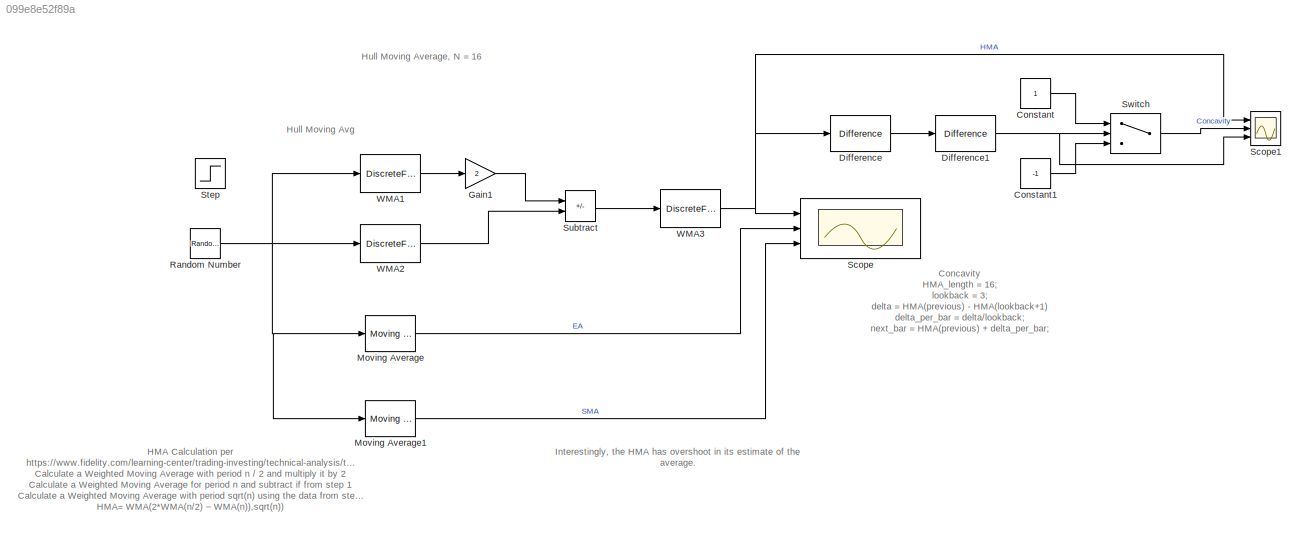
MODEL slx_099e8e52f89a
KIND model
CONFIG AbsTol = auto
CONFIG EnableMultiTasking = off
CONFIG FixedStep = auto
CONFIG MaxStep = auto
CONFIG MinStep = auto
CONFIG PreLoadFcn = N = 16
CONFIG RelTol = 1e-3
CONFIG SampleTimeConstraint = Unconstrained
CONFIG SolverName = VariableStepAuto
CONFIG StartTime = 0.0
CONFIG StopTime = 100
BLOCK [Constant] Constant
BLOCK [Constant] Constant1
  Value = -1
BLOCK [Reference] Difference  REF=simulink/Discrete/Difference
  Ports = [1, 1]
  SourceBlock = simulink/Discrete/Difference
  SourceProductBaseCode = SL
  SourceType = Difference
BLOCK [Reference] Difference1  REF=simulink/Discrete/Difference
  Ports = [1, 1]
  SourceBlock = simulink/Discrete/Difference
  SourceProductBaseCode = SL
  SourceType = Difference
BLOCK [Gain] Gain1
  Gain = 2
BLOCK [Reference] Moving Average  REF=dspstat3/Moving
Average
  AttributesFormatString = FF = %<ForgettingFactor>
  Ports = [1, 1]
  SourceBlock = dspstat3/Moving\nAverage
  SourceProductBaseCode = DS
  SourceType = dsp.simulink.MovingAverage
BLOCK [Reference] Moving Average1  REF=dspstat3/Moving
Average
  AttributesFormatString = FF = %<ForgettingFactor>
  Ports = [1, 1]
  SourceBlock = dspstat3/Moving\nAverage
  SourceProductBaseCode = DS
  SourceType = dsp.simulink.MovingAverage
BLOCK [RandomNumber] Random Number
  SampleTime = 1
BLOCK [Scope] Scope
  Floating = off
  NumInputPorts = 3
  Ports = [3]
  ScopeSpecificationString = Simulink.scopes.TimeScopeBlockCfg('CurrentConfiguration', extmgr.ConfigurationSet(extmgr.Configuration('Core','General UI',true),extmgr.Configuration('Core','Source UI',true),extmgr.Configuration('Sources','WiredSimulink',true),extmgr.Configuration('Visuals','Time Domain',true,'SerializedDisplays',{struct('MinYLimReal','-1.56403','MaxYLimReal','14.07629','YLabelReal','','MinYLimMag','0.00000','Max...<+1373ch>
BLOCK [Scope] Scope1
  Floating = off
  NumInputPorts = 3
  Ports = [3]
  ScopeSpecificationString = Simulink.scopes.TimeScopeBlockCfg('CurrentConfiguration', extmgr.ConfigurationSet(extmgr.Configuration('Core','General UI',true),extmgr.Configuration('Core','Source UI',true),extmgr.Configuration('Sources','WiredSimulink',true,'DataLoggingVariableName','ScopeData1'),extmgr.Configuration('Visuals','Time Domain',true,'SerializedDisplays',{struct('MinYLimReal','-1.25','MaxYLimReal','1.25','YLabelReal...<+2785ch>
BLOCK [Step] Step
  After = 10
  SampleTime = 1
BLOCK [Sum] Subtract
  IconShape = rectangular
  Inputs = +-
  Ports = [2, 1]
BLOCK [Switch] Switch
  Criteria = u2 > Threshold
  InputSameDT = off
  SaturateOnIntegerOverflow = off
BLOCK [DiscreteFir] WMA1
  Coefficients = [N/2:-1:1]/sum(1:N/2)
  InputPortMap = u0
  OutputPortMap = o0
  Ports = [1, 1]
BLOCK [DiscreteFir] WMA2
  Coefficients = [N:-1:1]/sum(1:N)
  InputPortMap = u0
  OutputPortMap = o0
  Ports = [1, 1]
BLOCK [DiscreteFir] WMA3
  Coefficients = [sqrt(N):-1:1]/sum(1:sqrt(N))
  InputPortMap = u0
  OutputPortMap = o0
  Ports = [1, 1]
ANNOTATION (root): HMA Calculation per https://www.fidelity.com/learning-center/trading-investing/technical-analysis/technical-indicator-guide/hull-moving-average Calculate a Weighted Moving Average with period n / 2 and multiply it by 2 Calculate a Weighted Moving Average for period n and subtract if from step 1 Calculate a Weighted Moving Average with period sqrt(n) using the data from step 2 HMA= WMA(2*WMA(n/2) −...<+17ch>
ANNOTATION (root): Hull Moving Average, N = 16
ANNOTATION (root): Concavity HMA_length = 16; lookback = 3; delta = HMA(previous) - HMA(lookback+1) delta_per_bar = delta/lookback; next_bar = HMA(previous) + delta_per_bar; if MA(current) > next_bar concavity = 1; else concavity = -1; end if concavity(next) != concavity(current) turning_point = HMA(current) else turning_point = NaN; end if turning_point and concavity == -1 buy = 1; else buy = NaN; end
ANNOTATION (root): Hull Moving Avg
ANNOTATION (root): Interestingly, the HMA has overshoot in its estimate of the average.
LINE Constant1:1 -> Switch:3
LINE Constant:1 -> Switch:1
NET Difference1:1 -> Scope1:3, Switch:2
LINE Difference:1 -> Difference1:1
LINE Gain1:1 -> Subtract:1
LINE Moving Average1:1 -> Scope:3
LINE Moving Average:1 -> Scope:2
NET Random Number:1 -> Moving Average1:1, Moving Average:1, WMA1:1, WMA2:1
LINE Subtract:1 -> WMA3:1
LINE Switch:1 -> Scope1:2
LINE WMA1:1 -> Gain1:1
LINE WMA2:1 -> Subtract:2
NET WMA3:1 -> Difference:1, Scope1:1, Scope:1
note: NET lines group one-source signal fan-out (src -> all destinations, sorted); 1:1 wires keep LINE
